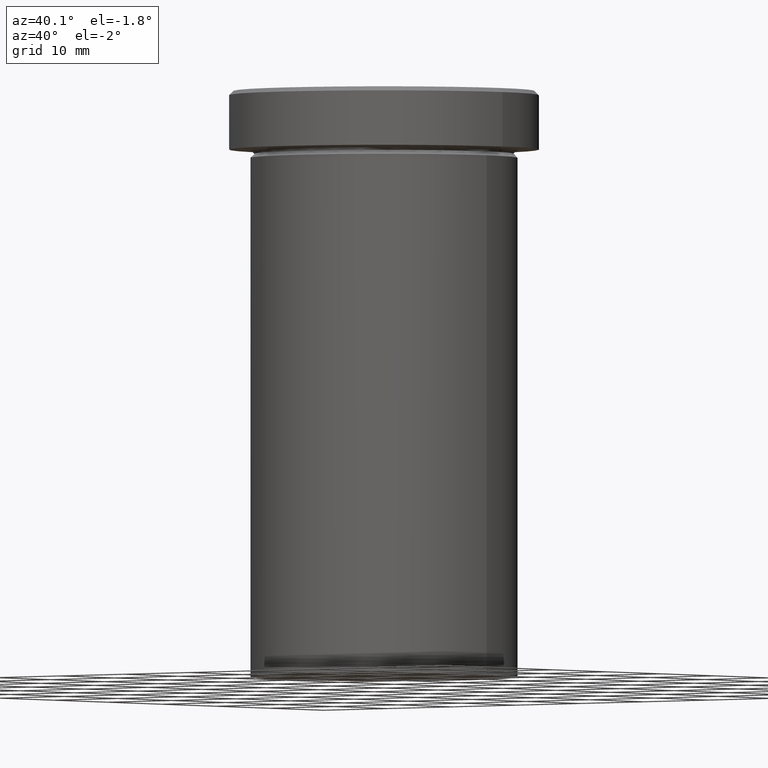
[diagram: clean part render]
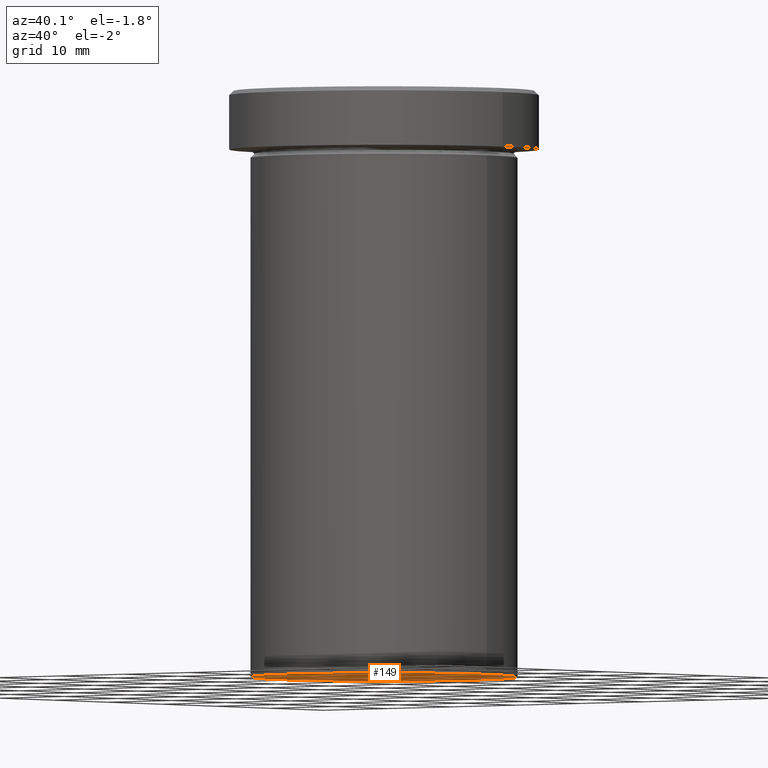
[diagram: same view with one face highlighted and labeled with its STEP entity id]
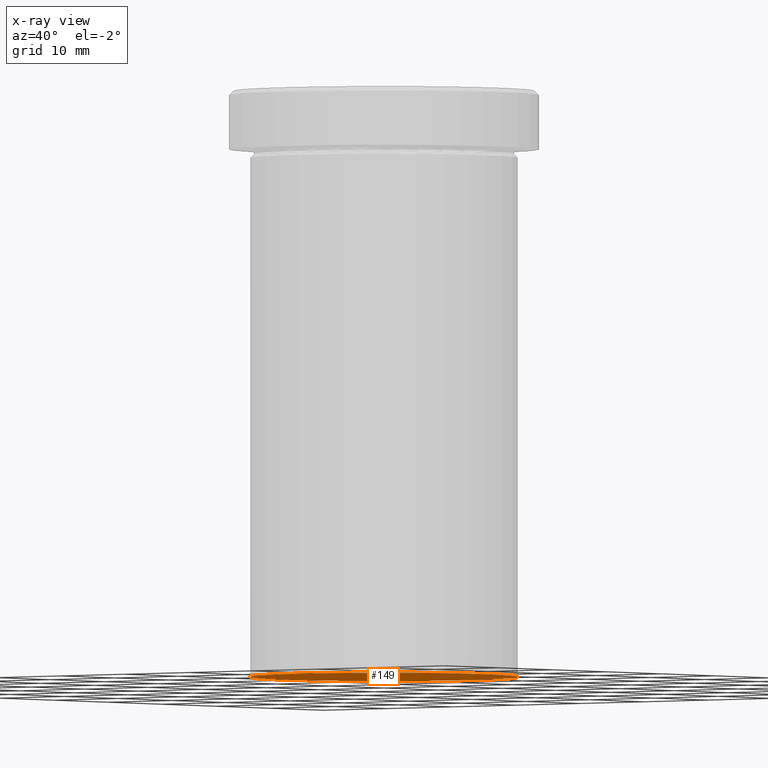
[diagram: x-ray of the same camera — body ghosted, the highlighted face saturated]
A machine part, auxiliary view. The second image highlights one B-rep face of the part: STEP entity #149.
The next image is the same camera in x-ray: the body ghosted, the highlighted face saturated — about 0% of this face is hidden behind the body in this view.
In plain terms, the highlighted planar face has unit normal (0, 0, -1).
Its self-contained STEP definition (entity closure, byte-faithful):
#11 = VERTEX_POINT ( 'NONE', #324 ) ;
#47 = AXIS2_PLACEMENT_3D ( 'NONE', #269, #232, #204 ) ;
#54 = PLANE ( 'NONE',  #47 ) ;
#86 = CIRCLE ( 'NONE', #333, 16.00000000000000000 ) ;
#87 = DIRECTION ( 'NONE',  ( -0.000000000000000000, -0.000000000000000000, 1.000000000000000000 ) ) ;
#114 = CARTESIAN_POINT ( 'NONE',  ( 0.000000000000000000, 0.000000000000000000, -70.00000000000000000 ) ) ;
#123 = ORIENTED_EDGE ( 'NONE', *, *, #257, .F. ) ;
#126 = CIRCLE ( 'NONE', #231, 16.00000000000000000 ) ;
#149 = ADVANCED_FACE ( 'NONE', ( #331 ), #54, .T. ) ;
#204 = DIRECTION ( 'NONE',  ( -1.000000000000000000, 0.000000000000000000, -0.000000000000000000 ) ) ;
#229 = VERTEX_POINT ( 'NONE', #336 ) ;
#231 = AXIS2_PLACEMENT_3D ( 'NONE', #237, #403, #343 ) ;
#232 = DIRECTION ( 'NONE',  ( 0.000000000000000000, 0.000000000000000000, -1.000000000000000000 ) ) ;
#234 = EDGE_CURVE ( 'NONE', #229, #11, #126, .T. ) ;
#237 = CARTESIAN_POINT ( 'NONE',  ( 0.000000000000000000, 0.000000000000000000, -70.00000000000000000 ) ) ;
#257 = EDGE_CURVE ( 'NONE', #11, #229, #86, .T. ) ;
#269 = CARTESIAN_POINT ( 'NONE',  ( 0.000000000000000000, 16.00000000000000000, -70.00000000000000000 ) ) ;
#324 = CARTESIAN_POINT ( 'NONE',  ( -16.00000000000000000, 1.959434878635765131E-15, -70.00000000000000000 ) ) ;
#331 = FACE_OUTER_BOUND ( 'NONE', #353, .T. ) ;
#333 = AXIS2_PLACEMENT_3D ( 'NONE', #114, #87, #335 ) ;
#335 = DIRECTION ( 'NONE',  ( 1.000000000000000000, 0.000000000000000000, 0.000000000000000000 ) ) ;
#336 = CARTESIAN_POINT ( 'NONE',  ( 16.00000000000000000, 0.000000000000000000, -70.00000000000000000 ) ) ;
#343 = DIRECTION ( 'NONE',  ( 1.000000000000000000, 0.000000000000000000, 0.000000000000000000 ) ) ;
#353 = EDGE_LOOP ( 'NONE', ( #395, #123 ) ) ;
#395 = ORIENTED_EDGE ( 'NONE', *, *, #234, .F. ) ;
#403 = DIRECTION ( 'NONE',  ( -0.000000000000000000, -0.000000000000000000, 1.000000000000000000 ) ) ;